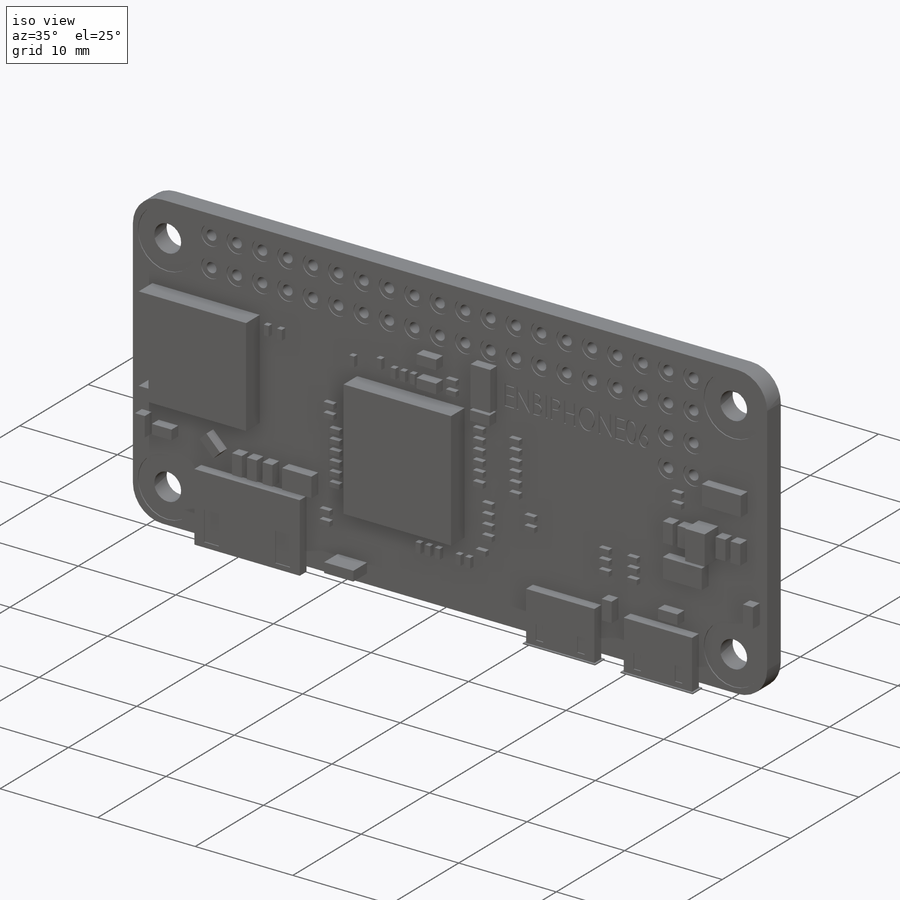
[diagram: iso view]
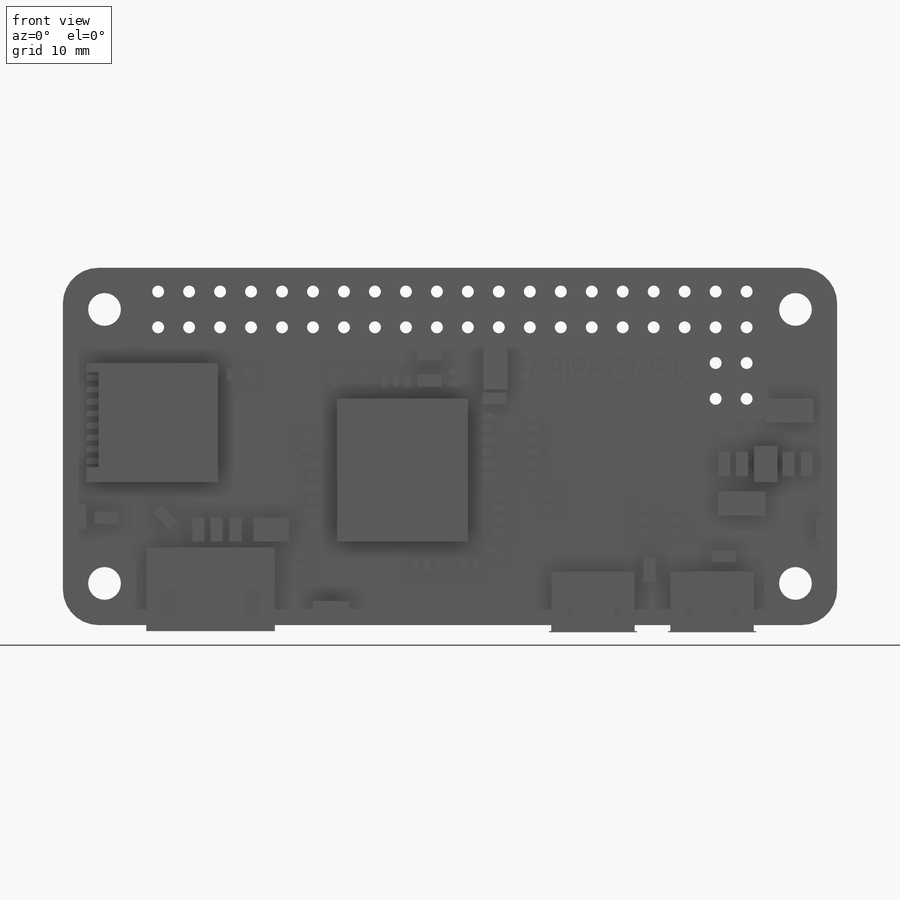
[diagram: front view]
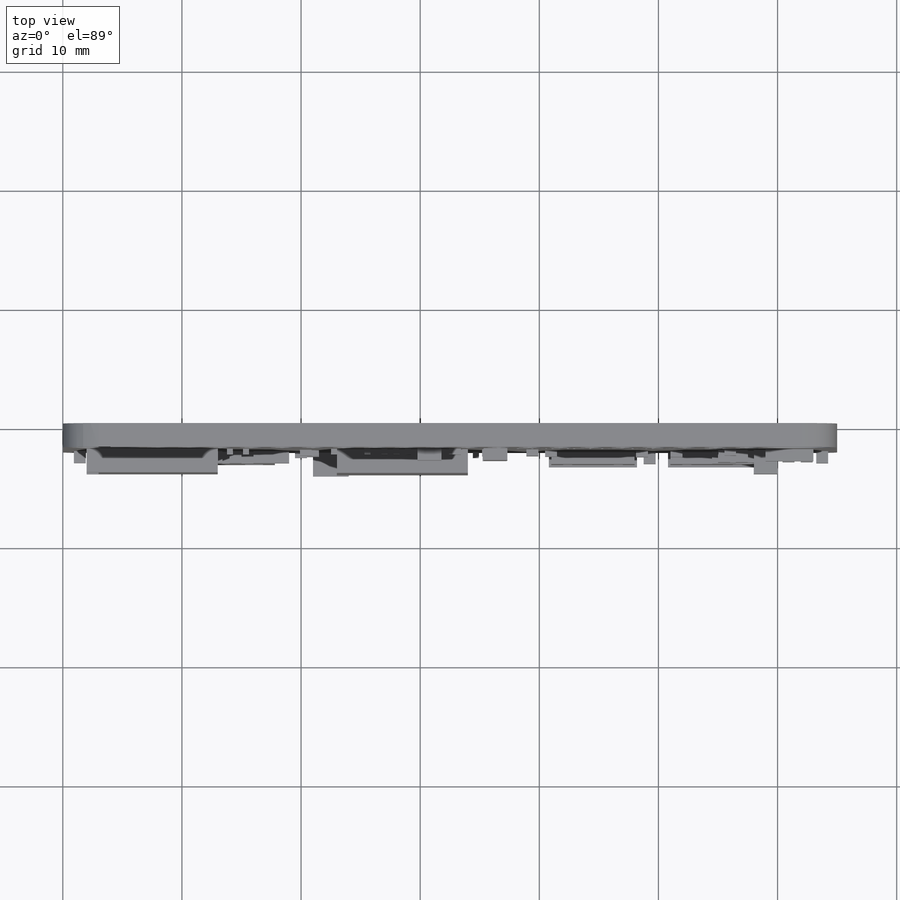
[diagram: top view]
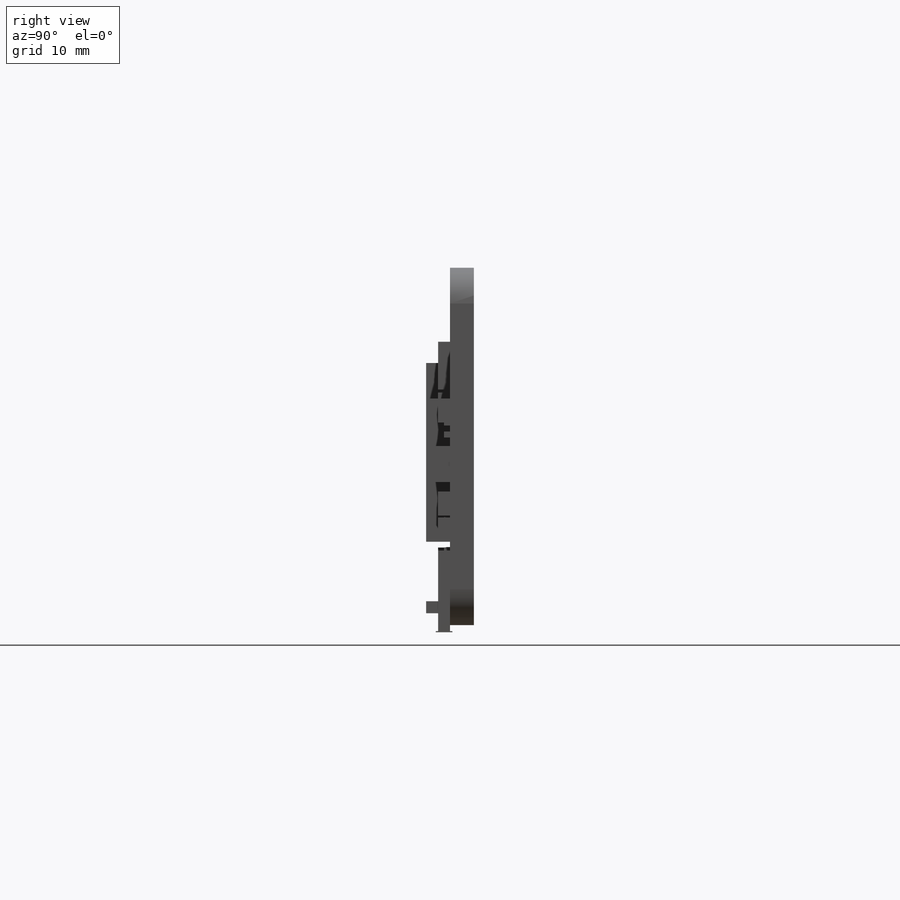
[diagram: right view]
SOLIDWORKS PART (.sldprt)
format: sldprt  version: not decoded by parser v0  size: 1,216,512 bytes
history: native  units: mm
features: sketch x15, extrude x9, cut_extrude x6, material x1 (+11 scaffold rows collapsed)
feature tree (42):
  scaffold x11  (default folders/planes/origin — collapsed)
  material  "Material <not specified>"
  sketch  "Sketch1"  dims[D3=3.0mm D4=3.0mm D5=6.0mm D8=2.75mm D1=30.0mm D2=65.0mm D6=3.5mm D7=3.5mm]
  extrude  "Boss-Extrude1"  Depth=2mm
  sketch  "Sketch2"  dims[D1=6.0mm]
  cut_extrude  "Cut-Extrude1"  Depth=0.1mm
  sketch  "Sketch3"  dims[D1=6.0mm]
  cut_extrude  "Cut-Extrude2"  Depth=0.1mm
  sketch  "Sketch4"  dims[D1=7.0mm D2=7.0mm D3=0.5mm D4=5.0mm D5=7.0mm D6=5.0mm D7=3.0mm D8=0.5mm]
  extrude  "Boss-Extrude2"  Depth=1mm
  sketch  "Sketch5"  dims[D1=7.0mm D2=10.8mm D3=0.5mm D4=7.0mm]
  extrude  "Boss-Extrude3"  [1 undecoded]
  sketch  "Sketch6"  dims[D1=0.2mm D2=0.2mm D3=0.2mm D4=0.2mm D5=0.2mm D6=0.2mm]
  extrude  "Boss-Extrude4"  Depth=0.1mm
  sketch  "Sketch7"  dims[D1=1.0mm D2=2.0mm D3=8.0mm D4=20.0]
  cut_extrude  "Cut-Extrude3"  Depth=2mm
  sketch  "Sketch8"  dims[D1=2.0mm D2=2.0mm D3=20.0]
  cut_extrude  "Cut-Extrude4"  Depth=0.1mm
  sketch  "Sketch9"  dims[D1=1.5mm D2=3.0mm D3=3.0mm D4=1.5mm D5=1.0mm D6=0.5mm D7=1.0mm D8=0.5mm D9=0.75mm D10=1.5mm D11=1.0mm D12=1.0mm D13=0.75mm D14=1.5mm]
  cut_extrude  "Cut-Extrude5"  Depth=0.1mm
  sketch  "Sketch10"  dims[D1=10.0mm D2=8.0mm D3=10.0mm D4=3.0mm D5=23.0mm D6=11.0mm D7=12.0mm D8=11.0mm D9=1.0mm D10=0.75mm D11=1.0mm D12=1.25mm D13=2.0mm D14=5.0mm D15=3.0mm D16=15.0mm D17=3.0mm D18=1.0mm D19=1.0mm D20=21.0mm]
  extrude  "Boss-Extrude5"  Depth=2mm
  sketch  "Sketch11"  dims[D1=0.5mm D2=1.0mm D3=1.0mm D4=8.0]
  extrude  "Boss-Extrude6"  Depth=0.5mm
  sketch  "Sketch12"  dims[D1=1.0mm D2=2.0mm D3=0.5mm D4=0.5mm D5=2.0mm D6=3.0mm D7=7.0mm D8=16.0mm]
  extrude  "Boss-Extrude7"  Depth=1mm
  sketch  "Sketch13"  dims[D1=2.0mm D2=4.0mm D3=2.0mm D4=11.0mm]
  extrude  "Boss-Extrude8"  Depth=1mm
  sketch  "Sketch14"  dims[D1=1.0mm D2=1.0mm D3=2.0mm D4=7.0mm]
  extrude  "Boss-Extrude9"  Depth=1mm
  sketch  "Sketch15"
  cut_extrude  "Cut-Extrude6"  Depth=0.1mm
decode coverage: 28 of 30 modeling features carry decoded parameters
note: 1 parameter value undecoded
note: suppression state not decoded; provenance and decode notes live in map.json
